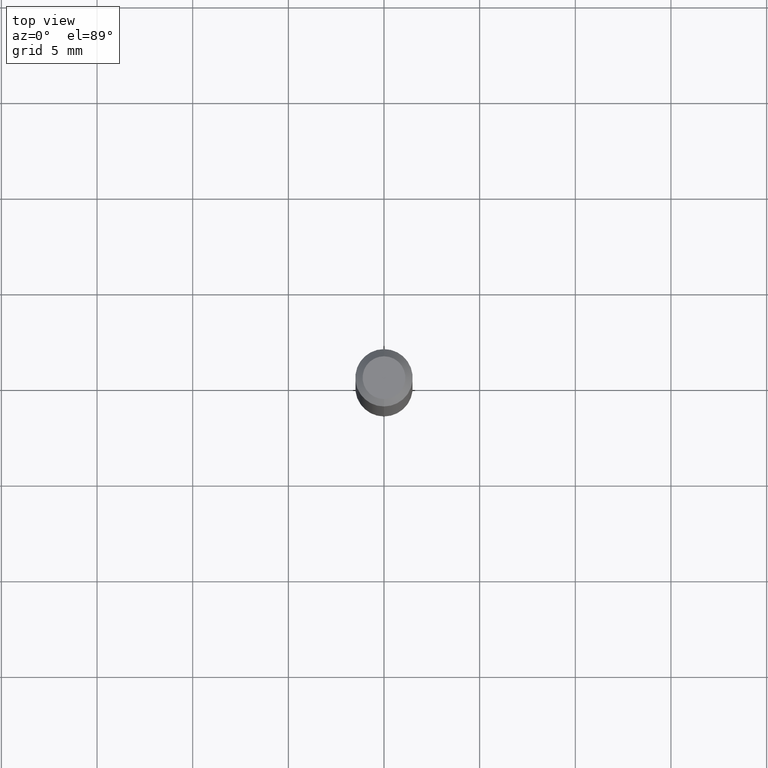
[diagram: clean part render]
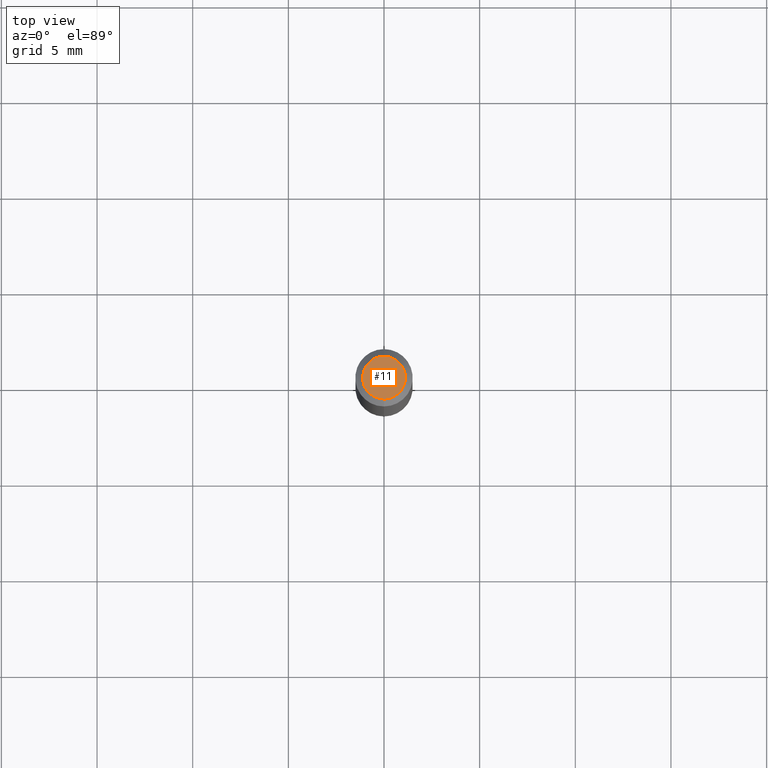
[diagram: same view with one face highlighted and labeled with its STEP entity id]
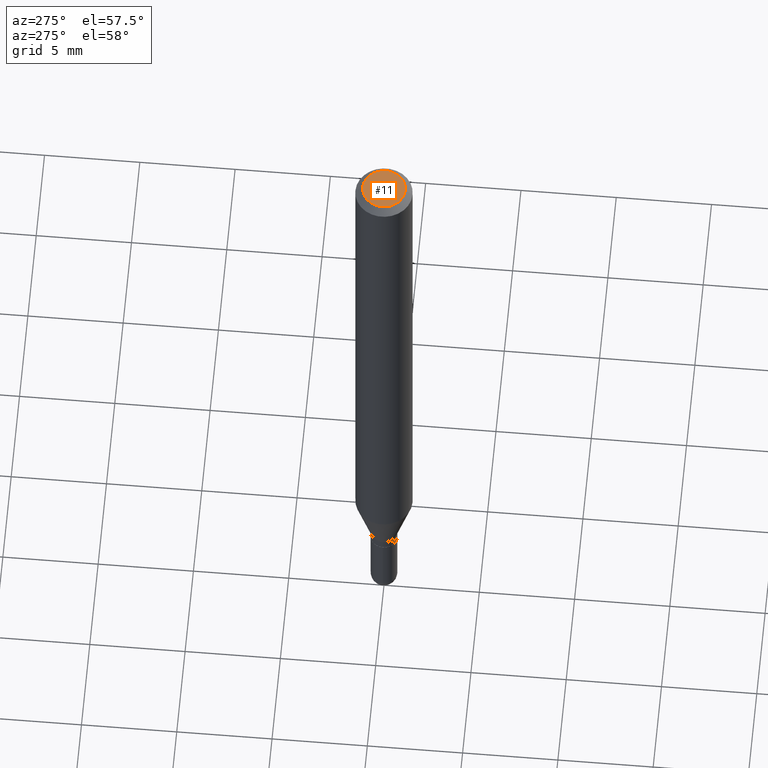
[diagram: same view with one face highlighted and labeled with its STEP entity id]
A machine part, top view. The second image highlights one B-rep face of the part: STEP entity #11.
A second angle (auxiliary view) of the same face is appended — the face is thin or edge-on in the first view.
In plain terms, the highlighted planar face has unit normal (0, -0, -1).
Its self-contained STEP definition (entity closure, byte-faithful):
#11 = ADVANCED_FACE ( 'NONE', ( #177 ), #122, .F. ) ;
#20 = CARTESIAN_POINT ( 'NONE',  ( -3.536586717851222218E-16, -0.04404999999999999888, 6.213451263233718482E-17 ) ) ;
#32 = DIRECTION ( 'NONE',  ( -6.982962677686265133E-15, -1.000000000000000000, 3.491476487225395476E-15 ) ) ;
#74 = ORIENTED_EDGE ( 'NONE', *, *, #209, .T. ) ;
#88 = CARTESIAN_POINT ( 'NONE',  ( 3.599717260347271507E-16, 0.04404999999999999888, -2.454645658922201879E-16 ) ) ;
#108 = DIRECTION ( 'NONE',  ( -2.445472194051704055E-29, 3.491476487225395476E-15, 1.000000000000000000 ) ) ;
#122 = PLANE ( 'NONE',  #327 ) ;
#132 = CARTESIAN_POINT ( 'NONE',  ( 3.075995059520799729E-16, 0.04404999999999999888, -1.996320525772494279E-16 ) ) ;
#177 = FACE_OUTER_BOUND ( 'NONE', #298, .T. ) ;
#183 = DIRECTION ( 'NONE',  ( -2.445472194051704055E-29, 3.491476487225395476E-15, 1.000000000000000000 ) ) ;
#187 = CIRCLE ( 'NONE', #257, 0.04404999999999999888 ) ;
#201 = EDGE_CURVE ( 'NONE', #350, #318, #187, .T. ) ;
#209 = EDGE_CURVE ( 'NONE', #318, #350, #300, .T. ) ;
#244 = DIRECTION ( 'NONE',  ( 6.982962677686265922E-15, 1.000000000000000000, -3.491476487225395476E-15 ) ) ;
#257 = AXIS2_PLACEMENT_3D ( 'NONE', #474, #183, #351 ) ;
#298 = EDGE_LOOP ( 'NONE', ( #409, #74 ) ) ;
#300 = CIRCLE ( 'NONE', #511, 0.04404999999999999888 ) ;
#318 = VERTEX_POINT ( 'NONE', #20 ) ;
#327 = AXIS2_PLACEMENT_3D ( 'NONE', #132, #449, #244 ) ;
#350 = VERTEX_POINT ( 'NONE', #88 ) ;
#351 = DIRECTION ( 'NONE',  ( -6.982962677686265133E-15, -1.000000000000000000, 3.491476487225395476E-15 ) ) ;
#396 = CARTESIAN_POINT ( 'NONE',  ( 2.241642737905308644E-45, -3.200462851793304302E-31, -9.166502662994148305E-17 ) ) ;
#409 = ORIENTED_EDGE ( 'NONE', *, *, #201, .T. ) ;
#449 = DIRECTION ( 'NONE',  ( 2.445472194051703774E-29, -3.491476487225395476E-15, -1.000000000000000000 ) ) ;
#474 = CARTESIAN_POINT ( 'NONE',  ( 2.241642737905308644E-45, -3.200462851793304302E-31, -9.166502662994148305E-17 ) ) ;
#511 = AXIS2_PLACEMENT_3D ( 'NONE', #396, #108, #32 ) ;